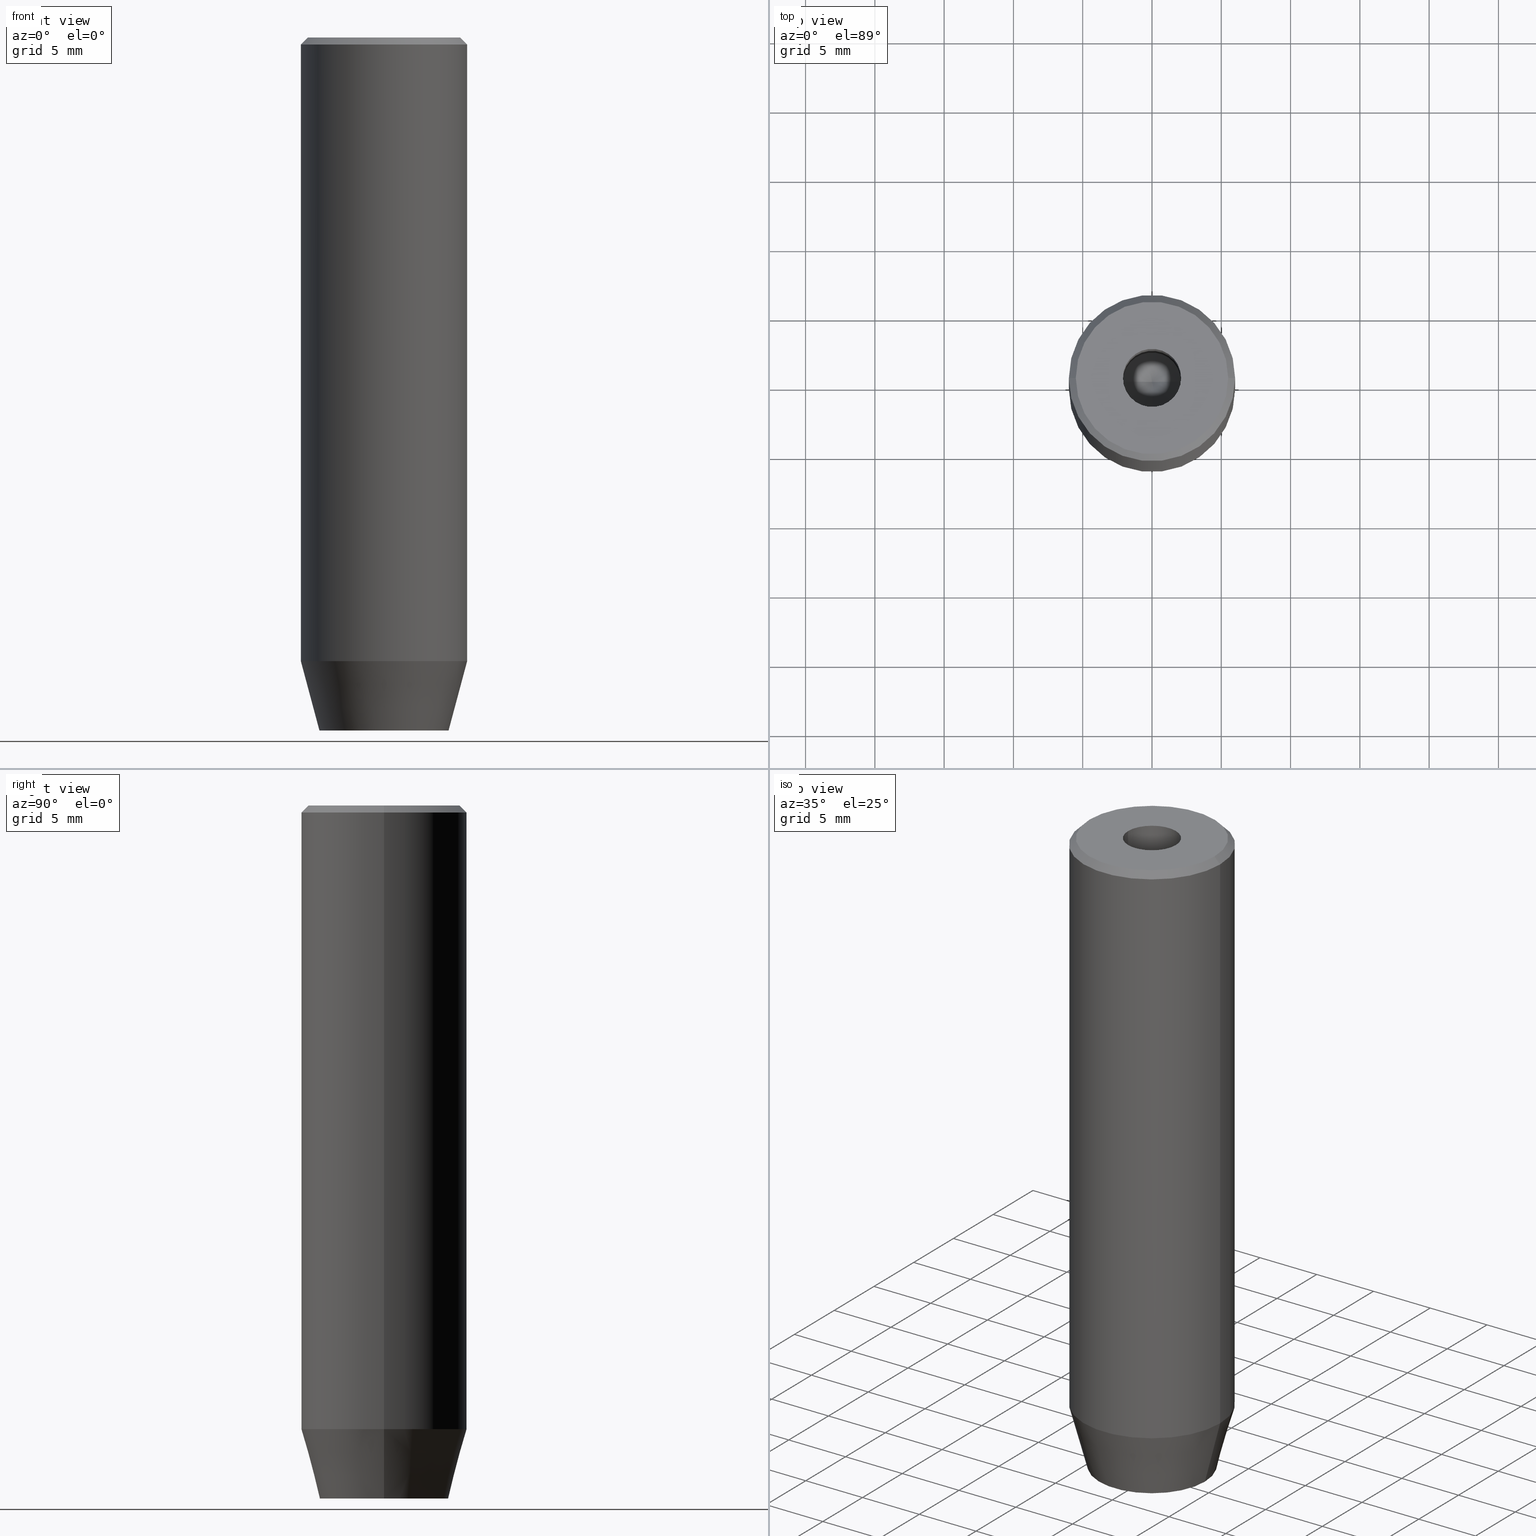
[diagram: canonical four-view strip — front | top / right | iso, engineering-drawing reading convention]
A machine part, canonical four-view strip (front | top / right | iso — engineering-drawing reading convention). The complete STEP part file that produces these views, byte-faithful:
ISO-10303-21;
HEADER;
FILE_DESCRIPTION (( 'STEP AP203' ),
    '1' );
FILE_NAME ('119d.STEP',
    '2024-01-02T21:57:10',
    ( '' ),
    ( '' ),
    'SwSTEP 2.0',
    'SolidWorks 2019',
    '' );
FILE_SCHEMA (( 'CONFIG_CONTROL_DESIGN' ));
ENDSEC;

DATA;
#1 = CARTESIAN_POINT ( 'NONE',  ( 0.000000000000000000, 0.000000000000000000, -45.00000000000000711 ) ) ;
#2 = ORIENTED_EDGE ( 'NONE', *, *, #275, .T. ) ;
#3 = EDGE_CURVE ( 'NONE', #278, #454, #384, .T. ) ;
#4 = DIRECTION ( 'NONE',  ( -0.000000000000000000, -0.000000000000000000, 1.000000000000000000 ) ) ;
#5 = EDGE_LOOP ( 'NONE', ( #512, #327, #334, #270, #83, #542 ) ) ;
#6 = CARTESIAN_POINT ( 'NONE',  ( 2.500000000000000000, -1.443375672974064106, -47.20000000000000284 ) ) ;
#7 = VERTEX_POINT ( 'NONE', #560 ) ;
#8 = ORIENTED_EDGE ( 'NONE', *, *, #180, .F. ) ;
#9 = CARTESIAN_POINT ( 'NONE',  ( 0.000000000000000000, 0.000000000000000000, 0.000000000000000000 ) ) ;
#10 = AXIS2_PLACEMENT_3D ( 'NONE', #69, #248, #34 ) ;
#11 = DIRECTION ( 'NONE',  ( 1.000000000000000000, 0.000000000000000000, 0.000000000000000000 ) ) ;
#12 = CIRCLE ( 'NONE', #217, 2.099999999999996980 ) ;
#13 = ORIENTED_EDGE ( 'NONE', *, *, #379, .F. ) ;
#14 = EDGE_CURVE ( 'NONE', #570, #324, #123, .T. ) ;
#15 = PLANE ( 'NONE',  #422 ) ;
#16 = APPROVAL_STATUS ( 'not_yet_approved' ) ;
#17 = DIRECTION ( 'NONE',  ( -0.000000000000000000, -0.000000000000000000, 1.000000000000000000 ) ) ;
#18 = ORIENTED_EDGE ( 'NONE', *, *, #121, .T. ) ;
#19 = AXIS2_PLACEMENT_3D ( 'NONE', #543, #144, #321 ) ;
#20 = ORIENTED_EDGE ( 'NONE', *, *, #275, .F. ) ;
#21 = AXIS2_PLACEMENT_3D ( 'NONE', #178, #390, #483 ) ;
#22 = CALENDAR_DATE ( 2024, 2, 1 ) ;
#23 = CC_DESIGN_PERSON_AND_ORGANIZATION_ASSIGNMENT ( #550, #507, ( #437 ) ) ;
#24 = FACE_OUTER_BOUND ( 'NONE', #366, .T. ) ;
#25 = VERTEX_POINT ( 'NONE', #429 ) ;
#26 = PERSON_AND_ORGANIZATION ( #463, #547 ) ;
#27 = ORIENTED_EDGE ( 'NONE', *, *, #527, .T. ) ;
#28 = APPLICATION_CONTEXT ( 'configuration controlled 3d designs of mechanical parts and assemblies' ) ;
#29 = ORIENTED_EDGE ( 'NONE', *, *, #425, .T. ) ;
#30 = DIRECTION ( 'NONE',  ( -0.000000000000000000, -0.000000000000000000, -1.000000000000000000 ) ) ;
#31 = ADVANCED_FACE ( 'NONE', ( #163 ), #480, .T. ) ;
#32 = CIRCLE ( 'NONE', #224, 2.099999999999998757 ) ;
#33 = PLANE ( 'NONE',  #295 ) ;
#34 = DIRECTION ( 'NONE',  ( -1.000000000000000000, 0.000000000000000000, -0.000000000000000000 ) ) ;
#35 = ORIENTED_EDGE ( 'NONE', *, *, #352, .F. ) ;
#36 = DIRECTION ( 'NONE',  ( -0.7071067811865474617, 0.000000000000000000, -0.7071067811865474617 ) ) ;
#37 = LINE ( 'NONE', #261, #403 ) ;
#38 = CARTESIAN_POINT ( 'NONE',  ( 1.250000000000000222, 2.165063509461096825, -50.00000000000000000 ) ) ;
#39 = CIRCLE ( 'NONE', #19, 6.000000000000000000 ) ;
#40 = LOCAL_TIME ( 22, 57, 10.00000000000000000, #505 ) ;
#41 = EDGE_CURVE ( 'NONE', #25, #370, #211, .T. ) ;
#42 = CARTESIAN_POINT ( 'NONE',  ( -1.250000000000000444, 2.165063509461097269, -47.20000000000000284 ) ) ;
#43 = FACE_OUTER_BOUND ( 'NONE', #119, .T. ) ;
#44 = PLANE ( 'NONE',  #86 ) ;
#45 = DIRECTION ( 'NONE',  ( 0.7071067811865474617, 8.659560562354932858E-17, -0.7071067811865474617 ) ) ;
#46 = CARTESIAN_POINT ( 'NONE',  ( 5.499999999999990230, 7.041719095097274963E-16, 0.000000000000000000 ) ) ;
#47 = ORIENTED_EDGE ( 'NONE', *, *, #358, .F. ) ;
#48 = EDGE_CURVE ( 'NONE', #161, #126, #298, .T. ) ;
#49 = CIRCLE ( 'NONE', #129, 6.000000000000000000 ) ;
#50 = VERTEX_POINT ( 'NONE', #566 ) ;
#51 = CARTESIAN_POINT ( 'NONE',  ( 0.000000000000000000, 0.000000000000000000, 0.000000000000000000 ) ) ;
#52 = ORIENTED_EDGE ( 'NONE', *, *, #367, .F. ) ;
#53 = FACE_OUTER_BOUND ( 'NONE', #255, .T. ) ;
#54 = VERTEX_POINT ( 'NONE', #516 ) ;
#55 = DATE_AND_TIME ( #458, #40 ) ;
#56 = ADVANCED_FACE ( 'NONE', ( #167 ), #339, .F. ) ;
#57 = CARTESIAN_POINT ( 'NONE',  ( -2.099999999999996980, 2.571758278209438013E-16, -15.00000000000000000 ) ) ;
#58 = DIRECTION ( 'NONE',  ( -0.8660254037844385966, 0.5000000000000001110, 0.000000000000000000 ) ) ;
#59 = AXIS2_PLACEMENT_3D ( 'NONE', #393, #268, #302 ) ;
#60 = VECTOR ( 'NONE', #36, 1000.000000000000114 ) ;
#61 = APPROVAL_ROLE ( '' ) ;
#62 = DIRECTION ( 'NONE',  ( -0.000000000000000000, -0.000000000000000000, 1.000000000000000000 ) ) ;
#63 = ORIENTED_EDGE ( 'NONE', *, *, #121, .F. ) ;
#64 = ADVANCED_FACE ( 'NONE', ( #157 ), #286, .T. ) ;
#65 = DIRECTION ( 'NONE',  ( 1.000000000000000000, 0.000000000000000000, -0.000000000000000000 ) ) ;
#66 = VECTOR ( 'NONE', #223, 1000.000000000000000 ) ;
#67 = ORIENTED_EDGE ( 'NONE', *, *, #180, .T. ) ;
#68 = CALENDAR_DATE ( 2024, 2, 1 ) ;
#69 = CARTESIAN_POINT ( 'NONE',  ( 0.000000000000000000, 0.000000000000000000, -47.20000000000000284 ) ) ;
#70 = COORDINATED_UNIVERSAL_TIME_OFFSET ( 1, 0, .AHEAD. ) ;
#71 = CARTESIAN_POINT ( 'NONE',  ( 0.000000000000000000, 0.000000000000000000, -15.00000000000000000 ) ) ;
#72 = EDGE_CURVE ( 'NONE', #407, #276, #470, .T. ) ;
#73 = DIRECTION ( 'NONE',  ( 1.000000000000000000, 0.000000000000000000, 0.000000000000000000 ) ) ;
#74 = ORIENTED_EDGE ( 'NONE', *, *, #14, .T. ) ;
#75 = AXIS2_PLACEMENT_3D ( 'NONE', #1, #186, #408 ) ;
#76 = AXIS2_PLACEMENT_3D ( 'NONE', #469, #65, #201 ) ;
#77 = PRODUCT_DEFINITION_FORMATION_WITH_SPECIFIED_SOURCE ( 'LIBOVOLN�', '', #233, .NOT_KNOWN. ) ;
#78 = DIRECTION ( 'NONE',  ( 0.000000000000000000, 0.000000000000000000, -1.000000000000000000 ) ) ;
#79 = DIRECTION ( 'NONE',  ( 0.8660254037844385966, 0.5000000000000001110, 0.000000000000000000 ) ) ;
#80 = DESIGN_CONTEXT ( 'detailed design', #28, 'design' ) ;
#81 = ORIENTED_EDGE ( 'NONE', *, *, #571, .T. ) ;
#82 = FACE_OUTER_BOUND ( 'NONE', #341, .T. ) ;
#83 = ORIENTED_EDGE ( 'NONE', *, *, #100, .T. ) ;
#84 = ADVANCED_FACE ( 'NONE', ( #128, #488 ), #44, .T. ) ;
#85 = CARTESIAN_POINT ( 'NONE',  ( -2.500000000000000444, -1.443375672974064328, -47.20000000000000284 ) ) ;
#86 = AXIS2_PLACEMENT_3D ( 'NONE', #581, #583, #486 ) ;
#87 = CARTESIAN_POINT ( 'NONE',  ( -1.084202172485504434E-16, 2.886751345948129543, -47.20000000000000284 ) ) ;
#88 = PLANE ( 'NONE',  #59 ) ;
#89 = ORIENTED_EDGE ( 'NONE', *, *, #315, .T. ) ;
#90 = MECHANICAL_CONTEXT ( 'NONE', #122, 'mechanical' ) ;
#91 = CARTESIAN_POINT ( 'NONE',  ( 2.099999999999996980, 0.000000000000000000, -15.00000000000000000 ) ) ;
#92 = ADVANCED_FACE ( 'NONE', ( #82 ), #88, .F. ) ;
#93 = ORIENTED_EDGE ( 'NONE', *, *, #352, .T. ) ;
#94 = PERSON_AND_ORGANIZATION_ROLE ( 'design_owner' ) ;
#95 = FACE_OUTER_BOUND ( 'NONE', #360, .T. ) ;
#96 = ORIENTED_EDGE ( 'NONE', *, *, #237, .T. ) ;
#97 = AXIS2_PLACEMENT_3D ( 'NONE', #133, #135, #356 ) ;
#98 = ORIENTED_EDGE ( 'NONE', *, *, #571, .F. ) ;
#99 = CARTESIAN_POINT ( 'NONE',  ( -2.099999999999996980, 2.571758278209438013E-16, -15.00000000000000000 ) ) ;
#100 = EDGE_CURVE ( 'NONE', #554, #161, #37, .T. ) ;
#101 = ORIENTED_EDGE ( 'NONE', *, *, #3, .F. ) ;
#102 =( NAMED_UNIT ( * ) SI_UNIT ( $, .STERADIAN. ) SOLID_ANGLE_UNIT ( ) );
#103 = CYLINDRICAL_SURFACE ( 'NONE', #538, 6.000000000000000000 ) ;
#104 = EDGE_LOOP ( 'NONE', ( #288, #529, #181 ) ) ;
#105 = ORIENTED_EDGE ( 'NONE', *, *, #48, .T. ) ;
#106 = CC_DESIGN_DATE_AND_TIME_ASSIGNMENT ( #207, #472, ( #440 ) ) ;
#107 = COORDINATED_UNIVERSAL_TIME_OFFSET ( 1, 0, .AHEAD. ) ;
#108 = CARTESIAN_POINT ( 'NONE',  ( 0.000000000000000000, 0.000000000000000000, 0.000000000000000000 ) ) ;
#109 = PLANE ( 'NONE',  #253 ) ;
#110 = AXIS2_PLACEMENT_3D ( 'NONE', #131, #216, #397 ) ;
#111 = VERTEX_POINT ( 'NONE', #174 ) ;
#112 = DIRECTION ( 'NONE',  ( 1.000000000000000000, 0.000000000000000000, 0.000000000000000000 ) ) ;
#113 = DIRECTION ( 'NONE',  ( 1.000000000000000000, 0.000000000000000000, 0.000000000000000000 ) ) ;
#114 = EDGE_CURVE ( 'NONE', #54, #7, #532, .T. ) ;
#115 = EDGE_LOOP ( 'NONE', ( #495, #89, #227, #13 ) ) ;
#116 = PERSON_AND_ORGANIZATION ( #463, #547 ) ;
#117 = VECTOR ( 'NONE', #432, 1000.000000000000000 ) ;
#118 = VECTOR ( 'NONE', #572, 1000.000000000000114 ) ;
#119 = EDGE_LOOP ( 'NONE', ( #101, #260, #289, #322 ) ) ;
#120 = LOCAL_TIME ( 22, 57, 10.00000000000000000, #238 ) ;
#121 = EDGE_CURVE ( 'NONE', #276, #54, #346, .T. ) ;
#122 = APPLICATION_CONTEXT ( 'configuration controlled 3d designs of mechanical parts and assemblies' ) ;
#123 = LINE ( 'NONE', #169, #521 ) ;
#124 = CARTESIAN_POINT ( 'NONE',  ( 0.000000000000000000, 0.000000000000000000, -0.5000000000000099920 ) ) ;
#125 = ORIENTED_EDGE ( 'NONE', *, *, #315, .F. ) ;
#126 = VERTEX_POINT ( 'NONE', #222 ) ;
#127 = CARTESIAN_POINT ( 'NONE',  ( -2.500000000000000444, 1.443375672974064772, -47.20000000000000284 ) ) ;
#128 = FACE_BOUND ( 'NONE', #328, .T. ) ;
#129 = AXIS2_PLACEMENT_3D ( 'NONE', #124, #467, #112 ) ;
#130 = AXIS2_PLACEMENT_3D ( 'NONE', #9, #313, #194 ) ;
#131 = CARTESIAN_POINT ( 'NONE',  ( 0.000000000000000000, 0.000000000000000000, 0.000000000000000000 ) ) ;
#132 = EDGE_CURVE ( 'NONE', #161, #570, #182, .T. ) ;
#133 = CARTESIAN_POINT ( 'NONE',  ( 0.000000000000000000, 0.000000000000000000, 0.000000000000000000 ) ) ;
#134 = DIRECTION ( 'NONE',  ( -1.000000000000000000, 0.000000000000000000, 0.000000000000000000 ) ) ;
#135 = DIRECTION ( 'NONE',  ( 0.000000000000000000, 0.000000000000000000, -1.000000000000000000 ) ) ;
#136 = PRODUCT_DEFINITION_SHAPE ( 'NONE', 'NONE',  #437 ) ;
#137 = VECTOR ( 'NONE', #415, 1000.000000000000000 ) ;
#138 = AXIS2_PLACEMENT_3D ( 'NONE', #519, #310, #573 ) ;
#139 = ORIENTED_EDGE ( 'NONE', *, *, #465, .F. ) ;
#140 = ADVANCED_FACE ( 'NONE', ( #304 ), #210, .T. ) ;
#141 = LINE ( 'NONE', #42, #274 ) ;
#142 = LINE ( 'NONE', #464, #451 ) ;
#143 = ORIENTED_EDGE ( 'NONE', *, *, #503, .T. ) ;
#144 = DIRECTION ( 'NONE',  ( 0.000000000000000000, 0.000000000000000000, -1.000000000000000000 ) ) ;
#145 = CIRCLE ( 'NONE', #471, 4.660254037844382857 ) ;
#146 = CONICAL_SURFACE ( 'NONE', #331, 5.499999999999990230, 0.7853981633974482790 ) ;
#147 = LINE ( 'NONE', #511, #430 ) ;
#148 = ORIENTED_EDGE ( 'NONE', *, *, #132, .F. ) ;
#149 = ADVANCED_FACE ( 'NONE', ( #215 ), #243, .F. ) ;
#150 = DIRECTION ( 'NONE',  ( 0.000000000000000000, -1.000000000000000000, 0.000000000000000000 ) ) ;
#151 = ORIENTED_EDGE ( 'NONE', *, *, #220, .T. ) ;
#152 = DIRECTION ( 'NONE',  ( -0.2588190451025214611, 3.169619151431774186E-17, 0.9659258262890679791 ) ) ;
#153 = AXIS2_PLACEMENT_3D ( 'NONE', #525, #290, #113 ) ;
#154 = EDGE_CURVE ( 'NONE', #549, #50, #574, .T. ) ;
#155 = CARTESIAN_POINT ( 'NONE',  ( -4.660254037844382857, 6.527522992771886302E-16, -50.00000000000000000 ) ) ;
#156 = CIRCLE ( 'NONE', #256, 5.499999999999990230 ) ;
#157 = FACE_OUTER_BOUND ( 'NONE', #115, .T. ) ;
#158 = APPROVAL_ROLE ( '' ) ;
#159 = CARTESIAN_POINT ( 'NONE',  ( -3.982994051648894933E-15, 0.000000000000000000, -16.26180729995787644 ) ) ;
#160 = APPROVAL ( #569, 'NEUR�EN�' ) ;
#161 = VERTEX_POINT ( 'NONE', #85 ) ;
#162 = PLANE ( 'NONE',  #138 ) ;
#163 = FACE_OUTER_BOUND ( 'NONE', #5, .T. ) ;
#164 = EDGE_CURVE ( 'NONE', #570, #549, #141, .T. ) ;
#165 = DIRECTION ( 'NONE',  ( 1.000000000000000000, 0.000000000000000000, 0.000000000000000000 ) ) ;
#166 = CIRCLE ( 'NONE', #266, 4.660254037844382857 ) ;
#167 = FACE_OUTER_BOUND ( 'NONE', #498, .T. ) ;
#168 = CARTESIAN_POINT ( 'NONE',  ( 2.099999999999997868, 0.000000000000000000, 0.000000000000000000 ) ) ;
#169 = CARTESIAN_POINT ( 'NONE',  ( -2.500000000000000444, 1.443375672974064772, -47.20000000000000284 ) ) ;
#170 = EDGE_LOOP ( 'NONE', ( #493, #375, #20, #47 ) ) ;
#171 = CARTESIAN_POINT ( 'NONE',  ( 1.249999999999999778, -2.165063509461096380, -50.00000000000000000 ) ) ;
#172 = CARTESIAN_POINT ( 'NONE',  ( -5.499999999999990230, 0.000000000000000000, 0.000000000000000000 ) ) ;
#173 = EDGE_CURVE ( 'NONE', #200, #454, #32, .T. ) ;
#174 = CARTESIAN_POINT ( 'NONE',  ( 2.099999999999996980, 0.000000000000000000, -15.00000000000000000 ) ) ;
#175 = AXIS2_PLACEMENT_3D ( 'NONE', #108, #284, #461 ) ;
#176 = LINE ( 'NONE', #350, #514 ) ;
#177 = CARTESIAN_POINT ( 'NONE',  ( 2.099999999999998757, 0.000000000000000000, -1.990051048614449116E-16 ) ) ;
#178 = CARTESIAN_POINT ( 'NONE',  ( 0.000000000000000000, 0.000000000000000000, 0.000000000000000000 ) ) ;
#179 = CARTESIAN_POINT ( 'NONE',  ( 1.249999999999999778, -2.165063509461096380, -47.20000000000000284 ) ) ;
#180 = EDGE_CURVE ( 'NONE', #50, #276, #528, .T. ) ;
#181 = ORIENTED_EDGE ( 'NONE', *, *, #367, .T. ) ;
#182 = LINE ( 'NONE', #400, #66 ) ;
#183 = VERTEX_POINT ( 'NONE', #351 ) ;
#184 = AXIS2_PLACEMENT_3D ( 'NONE', #305, #484, #219 ) ;
#185 = LOCAL_TIME ( 22, 57, 10.00000000000000000, #70 ) ;
#186 = DIRECTION ( 'NONE',  ( -0.000000000000000000, -0.000000000000000000, 1.000000000000000000 ) ) ;
#187 = ORIENTED_EDGE ( 'NONE', *, *, #220, .F. ) ;
#188 = CARTESIAN_POINT ( 'NONE',  ( -6.000000000000000000, 7.347880794884119736E-16, -0.5000000000000099920 ) ) ;
#189 = ORIENTED_EDGE ( 'NONE', *, *, #552, .F. ) ;
#190 = DIRECTION ( 'NONE',  ( -0.000000000000000000, -0.000000000000000000, 1.000000000000000000 ) ) ;
#191 = CC_DESIGN_DATE_AND_TIME_ASSIGNMENT ( #555, #558, ( #437 ) ) ;
#192 = CIRCLE ( 'NONE', #378, 6.000000000000000000 ) ;
#193 = VERTEX_POINT ( 'NONE', #46 ) ;
#194 = DIRECTION ( 'NONE',  ( 1.000000000000000000, 0.000000000000000000, 0.000000000000000000 ) ) ;
#195 = DIRECTION ( 'NONE',  ( -0.000000000000000000, -0.000000000000000000, 1.000000000000000000 ) ) ;
#196 = DIRECTION ( 'NONE',  ( 0.2588190451025214611, 0.000000000000000000, 0.9659258262890679791 ) ) ;
#197 = ADVANCED_FACE ( 'NONE', ( #259 ), #306, .F. ) ;
#198 = VERTEX_POINT ( 'NONE', #578 ) ;
#199 = CARTESIAN_POINT ( 'NONE',  ( 1.250000000000000222, 2.165063509461096825, -47.20000000000000284 ) ) ;
#200 = VERTEX_POINT ( 'NONE', #177 ) ;
#201 = DIRECTION ( 'NONE',  ( -0.000000000000000000, 0.000000000000000000, -1.000000000000000000 ) ) ;
#202 = LOCAL_TIME ( 22, 57, 10.00000000000000000, #475 ) ;
#203 = ORIENTED_EDGE ( 'NONE', *, *, #283, .F. ) ;
#204 = FACE_OUTER_BOUND ( 'NONE', #170, .T. ) ;
#205 = EDGE_CURVE ( 'NONE', #385, #554, #398, .T. ) ;
#206 = ORIENTED_EDGE ( 'NONE', *, *, #418, .F. ) ;
#207 = DATE_AND_TIME ( #22, #202 ) ;
#208 = DIRECTION ( 'NONE',  ( -0.000000000000000000, -0.000000000000000000, 1.000000000000000000 ) ) ;
#209 = DIRECTION ( 'NONE',  ( -0.4999999999999998890, -0.8660254037844387076, 0.000000000000000000 ) ) ;
#210 = CONICAL_SURFACE ( 'NONE', #97, 5.499999999999990230, 0.7853981633974482790 ) ;
#211 = LINE ( 'NONE', #518, #234 ) ;
#212 = DIRECTION ( 'NONE',  ( -0.000000000000000000, -0.000000000000000000, 1.000000000000000000 ) ) ;
#213 = ORIENTED_EDGE ( 'NONE', *, *, #503, .F. ) ;
#214 = EDGE_CURVE ( 'NONE', #410, #111, #494, .T. ) ;
#215 = FACE_OUTER_BOUND ( 'NONE', #104, .T. ) ;
#216 = DIRECTION ( 'NONE',  ( -0.000000000000000000, -0.000000000000000000, 1.000000000000000000 ) ) ;
#217 = AXIS2_PLACEMENT_3D ( 'NONE', #71, #17, #165 ) ;
#218 = ORIENTED_EDGE ( 'NONE', *, *, #299, .F. ) ;
#219 = DIRECTION ( 'NONE',  ( 1.000000000000000000, 0.000000000000000000, 0.000000000000000000 ) ) ;
#220 = EDGE_CURVE ( 'NONE', #7, #126, #491, .T. ) ;
#221 = ORIENTED_EDGE ( 'NONE', *, *, #154, .F. ) ;
#222 = CARTESIAN_POINT ( 'NONE',  ( -2.500000000000000444, -1.443375672974064328, -50.00000000000000000 ) ) ;
#223 = DIRECTION ( 'NONE',  ( 0.000000000000000000, 1.000000000000000000, 0.000000000000000000 ) ) ;
#224 = AXIS2_PLACEMENT_3D ( 'NONE', #265, #441, #311 ) ;
#225 = ORIENTED_EDGE ( 'NONE', *, *, #48, .F. ) ;
#226 = DIRECTION ( 'NONE',  ( -0.8571673007021113344, 1.049727191138617463E-16, 0.5150380749100558209 ) ) ;
#227 = ORIENTED_EDGE ( 'NONE', *, *, #358, .T. ) ;
#228 = ADVANCED_FACE ( 'NONE', ( #279 ), #15, .F. ) ;
#229 = CARTESIAN_POINT ( 'NONE',  ( 0.000000000000000000, 0.000000000000000000, -50.00000000000000000 ) ) ;
#230 = ORIENTED_EDGE ( 'NONE', *, *, #323, .F. ) ;
#231 = DIRECTION ( 'NONE',  ( 1.000000000000000000, 0.000000000000000000, 0.000000000000000000 ) ) ;
#232 = ORIENTED_EDGE ( 'NONE', *, *, #457, .F. ) ;
#233 = PRODUCT ( '119d', '119d', '', ( #90 ) ) ;
#234 = VECTOR ( 'NONE', #208, 1000.000000000000000 ) ;
#235 = VECTOR ( 'NONE', #343, 1000.000000000000000 ) ;
#236 = CARTESIAN_POINT ( 'NONE',  ( 0.000000000000000000, -2.886751345948128211, -47.20000000000000284 ) ) ;
#237 = EDGE_CURVE ( 'NONE', #385, #54, #363, .T. ) ;
#238 = COORDINATED_UNIVERSAL_TIME_OFFSET ( 1, 0, .AHEAD. ) ;
#239 = LINE ( 'NONE', #199, #567 ) ;
#240 = CARTESIAN_POINT ( 'NONE',  ( -2.099999999999998757, 2.571758278209439985E-16, -1.990051048614449116E-16 ) ) ;
#241 = ORIENTED_EDGE ( 'NONE', *, *, #283, .T. ) ;
#242 = DATE_AND_TIME ( #427, #120 ) ;
#243 = CONICAL_SURFACE ( 'NONE', #184, 2.099999999999996980, 1.029744258676652535 ) ;
#244 = CARTESIAN_POINT ( 'NONE',  ( 2.500000000000000000, 1.443375672974064328, -47.20000000000000284 ) ) ;
#245 = DATE_AND_TIME ( #68, #185 ) ;
#246 = EDGE_CURVE ( 'NONE', #468, #25, #147, .T. ) ;
#247 = DIRECTION ( 'NONE',  ( 1.000000000000000000, 0.000000000000000000, 0.000000000000000000 ) ) ;
#248 = DIRECTION ( 'NONE',  ( 0.000000000000000000, 0.000000000000000000, -1.000000000000000000 ) ) ;
#249 = ORIENTED_EDGE ( 'NONE', *, *, #14, .F. ) ;
#250 = PERSON_AND_ORGANIZATION_ROLE ( 'creator' ) ;
#251 = ORIENTED_EDGE ( 'NONE', *, *, #510, .T. ) ;
#252 = CARTESIAN_POINT ( 'NONE',  ( 0.000000000000000000, 0.000000000000000000, 0.000000000000000000 ) ) ;
#253 = AXIS2_PLACEMENT_3D ( 'NONE', #406, #374, #459 ) ;
#254 = VECTOR ( 'NONE', #531, 1000.000000000000000 ) ;
#255 = EDGE_LOOP ( 'NONE', ( #319, #249, #148, #105 ) ) ;
#256 = AXIS2_PLACEMENT_3D ( 'NONE', #252, #264, #439 ) ;
#257 = EDGE_CURVE ( 'NONE', #370, #198, #39, .T. ) ;
#258 = DIRECTION ( 'NONE',  ( -0.8660254037844385966, -0.5000000000000001110, 0.000000000000000000 ) ) ;
#259 = FACE_OUTER_BOUND ( 'NONE', #502, .T. ) ;
#260 = ORIENTED_EDGE ( 'NONE', *, *, #425, .F. ) ;
#261 = CARTESIAN_POINT ( 'NONE',  ( -1.249999999999999556, -2.165063509461096825, -47.20000000000000284 ) ) ;
#262 = ORIENTED_EDGE ( 'NONE', *, *, #379, .T. ) ;
#263 = ADVANCED_FACE ( 'NONE', ( #316 ), #103, .T. ) ;
#264 = DIRECTION ( 'NONE',  ( -0.000000000000000000, -0.000000000000000000, 1.000000000000000000 ) ) ;
#265 = CARTESIAN_POINT ( 'NONE',  ( 0.000000000000000000, 0.000000000000000000, -1.990051048614449116E-16 ) ) ;
#266 = AXIS2_PLACEMENT_3D ( 'NONE', #229, #4, #231 ) ;
#267 = DIRECTION ( 'NONE',  ( 1.000000000000000000, 0.000000000000000000, 0.000000000000000000 ) ) ;
#268 = DIRECTION ( 'NONE',  ( 0.5000000000000000000, -0.8660254037844387076, 0.000000000000000000 ) ) ;
#269 = DIRECTION ( 'NONE',  ( 0.8571673007021113344, 0.000000000000000000, 0.5150380749100558209 ) ) ;
#270 = ORIENTED_EDGE ( 'NONE', *, *, #205, .T. ) ;
#271 = LINE ( 'NONE', #411, #482 ) ;
#272 = CARTESIAN_POINT ( 'NONE',  ( 0.000000000000000000, 0.000000000000000000, 0.000000000000000000 ) ) ;
#273 = ORIENTED_EDGE ( 'NONE', *, *, #395, .T. ) ;
#274 = VECTOR ( 'NONE', #79, 1000.000000000000000 ) ;
#275 = EDGE_CURVE ( 'NONE', #478, #25, #192, .T. ) ;
#276 = VERTEX_POINT ( 'NONE', #500 ) ;
#277 = CARTESIAN_POINT ( 'NONE',  ( 0.000000000000000000, 0.000000000000000000, -45.00000000000000711 ) ) ;
#278 = VERTEX_POINT ( 'NONE', #99 ) ;
#279 = FACE_OUTER_BOUND ( 'NONE', #409, .T. ) ;
#280 = ORIENTED_EDGE ( 'NONE', *, *, #41, .T. ) ;
#281 = ORIENTED_EDGE ( 'NONE', *, *, #114, .T. ) ;
#282 = PERSON_AND_ORGANIZATION ( #463, #547 ) ;
#283 = EDGE_CURVE ( 'NONE', #324, #50, #553, .T. ) ;
#284 = DIRECTION ( 'NONE',  ( -0.000000000000000000, -0.000000000000000000, 1.000000000000000000 ) ) ;
#285 = ORIENTED_EDGE ( 'NONE', *, *, #214, .T. ) ;
#286 = CONICAL_SURFACE ( 'NONE', #153, 6.000000000000000000, 0.2617993877991502405 ) ;
#287 = LINE ( 'NONE', #236, #137 ) ;
#288 = ORIENTED_EDGE ( 'NONE', *, *, #214, .F. ) ;
#289 = ORIENTED_EDGE ( 'NONE', *, *, #457, .T. ) ;
#290 = DIRECTION ( 'NONE',  ( -0.000000000000000000, -0.000000000000000000, 1.000000000000000000 ) ) ;
#291 = ADVANCED_FACE ( 'NONE', ( #53 ), #109, .F. ) ;
#292 = PERSON_AND_ORGANIZATION ( #463, #547 ) ;
#293 = AXIS2_PLACEMENT_3D ( 'NONE', #524, #388, #417 ) ;
#294 = DIRECTION ( 'NONE',  ( -0.000000000000000000, -0.000000000000000000, 1.000000000000000000 ) ) ;
#295 = AXIS2_PLACEMENT_3D ( 'NONE', #345, #526, #258 ) ;
#296 = ORIENTED_EDGE ( 'NONE', *, *, #237, .F. ) ;
#297 = EDGE_LOOP ( 'NONE', ( #536, #81, #337, #213 ) ) ;
#298 = LINE ( 'NONE', #520, #338 ) ;
#299 = EDGE_CURVE ( 'NONE', #410, #278, #326, .T. ) ;
#300 = EDGE_LOOP ( 'NONE', ( #489, #27 ) ) ;
#301 = CIRCLE ( 'NONE', #175, 5.499999999999990230 ) ;
#302 = DIRECTION ( 'NONE',  ( 0.8660254037844385966, 0.4999999999999999445, 0.000000000000000000 ) ) ;
#303 = PRODUCT_RELATED_PRODUCT_CATEGORY ( 'detail', '', ( #233 ) ) ;
#304 = FACE_OUTER_BOUND ( 'NONE', #297, .T. ) ;
#305 = CARTESIAN_POINT ( 'NONE',  ( 0.000000000000000000, 0.000000000000000000, -15.00000000000000000 ) ) ;
#306 = CYLINDRICAL_SURFACE ( 'NONE', #110, 2.099999999999997868 ) ;
#307 = VECTOR ( 'NONE', #424, 1000.000000000000000 ) ;
#308 = CC_DESIGN_APPROVAL ( #335, ( #437 ) ) ;
#309 = ORIENTED_EDGE ( 'NONE', *, *, #114, .F. ) ;
#310 = DIRECTION ( 'NONE',  ( 0.000000000000000000, 0.000000000000000000, -1.000000000000000000 ) ) ;
#311 = DIRECTION ( 'NONE',  ( 1.000000000000000000, 0.000000000000000000, 0.000000000000000000 ) ) ;
#312 = ORIENTED_EDGE ( 'NONE', *, *, #342, .F. ) ;
#313 = DIRECTION ( 'NONE',  ( 0.000000000000000000, 0.000000000000000000, 1.000000000000000000 ) ) ;
#314 = CYLINDRICAL_SURFACE ( 'NONE', #347, 6.000000000000000000 ) ;
#315 = EDGE_CURVE ( 'NONE', #468, #183, #166, .T. ) ;
#316 = FACE_OUTER_BOUND ( 'NONE', #453, .T. ) ;
#317 = APPROVAL ( #16, 'NEUR�EN�' ) ;
#318 = AXIS2_PLACEMENT_3D ( 'NONE', #329, #62, #402 ) ;
#319 = ORIENTED_EDGE ( 'NONE', *, *, #579, .T. ) ;
#320 = PERSON_AND_ORGANIZATION ( #463, #547 ) ;
#321 = DIRECTION ( 'NONE',  ( 1.000000000000000000, 0.000000000000000000, 0.000000000000000000 ) ) ;
#322 = ORIENTED_EDGE ( 'NONE', *, *, #173, .T. ) ;
#323 = EDGE_CURVE ( 'NONE', #407, #385, #412, .T. ) ;
#324 = VERTEX_POINT ( 'NONE', #508 ) ;
#325 = APPLICATION_PROTOCOL_DEFINITION ( 'international standard', 'config_control_design', 1994, #122 ) ;
#326 = LINE ( 'NONE', #57, #586 ) ;
#327 = ORIENTED_EDGE ( 'NONE', *, *, #465, .T. ) ;
#328 = EDGE_LOOP ( 'NONE', ( #456, #189 ) ) ;
#329 = CARTESIAN_POINT ( 'NONE',  ( 0.000000000000000000, 0.000000000000000000, -15.00000000000000000 ) ) ;
#330 = CIRCLE ( 'NONE', #75, 6.000000000000000000 ) ;
#331 = AXIS2_PLACEMENT_3D ( 'NONE', #534, #78, #134 ) ;
#332 = CARTESIAN_POINT ( 'NONE',  ( -2.099999999999997868, 2.571758278209438999E-16, 0.000000000000000000 ) ) ;
#333 = DIRECTION ( 'NONE',  ( 0.8660254037844387076, -0.4999999999999998890, 0.000000000000000000 ) ) ;
#334 = ORIENTED_EDGE ( 'NONE', *, *, #323, .T. ) ;
#335 = APPROVAL ( #361, 'NEUR�EN�' ) ;
#336 = SECURITY_CLASSIFICATION_LEVEL ( 'unclassified' ) ;
#337 = ORIENTED_EDGE ( 'NONE', *, *, #257, .F. ) ;
#338 = VECTOR ( 'NONE', #30, 1000.000000000000000 ) ;
#339 = CONICAL_SURFACE ( 'NONE', #501, 2.099999999999996980, 1.029744258676652535 ) ;
#340 = FACE_OUTER_BOUND ( 'NONE', #448, .T. ) ;
#341 = EDGE_LOOP ( 'NONE', ( #281, #35, #548, #96 ) ) ;
#342 = EDGE_CURVE ( 'NONE', #460, #193, #301, .T. ) ;
#343 = DIRECTION ( 'NONE',  ( -0.000000000000000000, -0.000000000000000000, 1.000000000000000000 ) ) ;
#344 = EDGE_LOOP ( 'NONE', ( #241, #221, #391, #74 ) ) ;
#345 = CARTESIAN_POINT ( 'NONE',  ( -1.250000000000000444, 2.165063509461097269, -47.20000000000000284 ) ) ;
#346 = LINE ( 'NONE', #435, #368 ) ;
#347 = AXIS2_PLACEMENT_3D ( 'NONE', #272, #190, #479 ) ;
#348 = LOCAL_TIME ( 22, 57, 10.00000000000000000, #107 ) ;
#349 = DIRECTION ( 'NONE',  ( -0.8660254037844387076, -0.5000000000000001110, 0.000000000000000000 ) ) ;
#350 = CARTESIAN_POINT ( 'NONE',  ( 6.000000000000000000, 0.000000000000000000, 0.000000000000000000 ) ) ;
#351 = CARTESIAN_POINT ( 'NONE',  ( 4.660254037844382857, 0.000000000000000000, -50.00000000000000000 ) ) ;
#352 = EDGE_CURVE ( 'NONE', #554, #7, #287, .T. ) ;
#353 = FACE_OUTER_BOUND ( 'NONE', #506, .T. ) ;
#354 = DIRECTION ( 'NONE',  ( -0.8660254037844387076, -0.5000000000000001110, 0.000000000000000000 ) ) ;
#355 = DIRECTION ( 'NONE',  ( -0.000000000000000000, -0.000000000000000000, 1.000000000000000000 ) ) ;
#356 = DIRECTION ( 'NONE',  ( -1.000000000000000000, 0.000000000000000000, 0.000000000000000000 ) ) ;
#357 = APPROVAL_PERSON_ORGANIZATION ( #116, #160, #61 ) ;
#358 = EDGE_CURVE ( 'NONE', #183, #478, #142, .T. ) ;
#359 = DIRECTION ( 'NONE',  ( 0.8660254037844385966, 0.5000000000000001110, 0.000000000000000000 ) ) ;
#360 = EDGE_LOOP ( 'NONE', ( #2, #280, #421, #504 ) ) ;
#361 = APPROVAL_STATUS ( 'not_yet_approved' ) ;
#362 = CC_DESIGN_PERSON_AND_ORGANIZATION_ASSIGNMENT ( #382, #423, ( #77 ) ) ;
#363 = LINE ( 'NONE', #497, #513 ) ;
#364 = EDGE_LOOP ( 'NONE', ( #18, #296, #230, #436 ) ) ;
#365 = DIRECTION ( 'NONE',  ( -0.000000000000000000, -0.000000000000000000, -1.000000000000000000 ) ) ;
#366 = EDGE_LOOP ( 'NONE', ( #206, #125 ) ) ;
#367 = EDGE_CURVE ( 'NONE', #278, #111, #585, .T. ) ;
#368 = VECTOR ( 'NONE', #535, 1000.000000000000000 ) ;
#369 = APPROVAL_PERSON_ORGANIZATION ( #320, #335, #499 ) ;
#370 = VERTEX_POINT ( 'NONE', #188 ) ;
#371 = APPROVAL_DATE_TIME ( #55, #335 ) ;
#372 = MANIFOLD_SOLID_BREP ( 'Vrt�k z�vitn�ku pro M5 z�vit1', #584 ) ;
#373 = DIRECTION ( 'NONE',  ( 0.5000000000000001110, 0.8660254037844385966, -0.000000000000000000 ) ) ;
#374 = DIRECTION ( 'NONE',  ( -1.000000000000000000, 0.000000000000000000, 0.000000000000000000 ) ) ;
#375 = ORIENTED_EDGE ( 'NONE', *, *, #246, .T. ) ;
#376 = FACE_OUTER_BOUND ( 'NONE', #364, .T. ) ;
#377 = ORIENTED_EDGE ( 'NONE', *, *, #72, .F. ) ;
#378 = AXIS2_PLACEMENT_3D ( 'NONE', #277, #195, #11 ) ;
#379 = EDGE_CURVE ( 'NONE', #25, #478, #330, .T. ) ;
#380 = CARTESIAN_POINT ( 'NONE',  ( 6.000000000000000000, 0.000000000000000000, -45.00000000000000711 ) ) ;
#381 = EDGE_LOOP ( 'NONE', ( #203, #426, #187, #309, #63, #8 ) ) ;
#382 = PERSON_AND_ORGANIZATION ( #463, #547 ) ;
#383 = LINE ( 'NONE', #168, #235 ) ;
#384 = LINE ( 'NONE', #332, #117 ) ;
#385 = VERTEX_POINT ( 'NONE', #6 ) ;
#386 = ADVANCED_FACE ( 'NONE', ( #95 ), #314, .T. ) ;
#387 = VECTOR ( 'NONE', #269, 1000.000000000000000 ) ;
#388 = DIRECTION ( 'NONE',  ( -0.000000000000000000, -0.000000000000000000, 1.000000000000000000 ) ) ;
#389 = ORIENTED_EDGE ( 'NONE', *, *, #154, .T. ) ;
#390 = DIRECTION ( 'NONE',  ( -0.000000000000000000, -0.000000000000000000, 1.000000000000000000 ) ) ;
#391 = ORIENTED_EDGE ( 'NONE', *, *, #164, .F. ) ;
#392 = UNCERTAINTY_MEASURE_WITH_UNIT (LENGTH_MEASURE( 1.000000000000000082E-05 ), #496, 'distance_accuracy_value', 'NONE');
#393 = CARTESIAN_POINT ( 'NONE',  ( 1.249999999999999778, -2.165063509461096380, -47.20000000000000284 ) ) ;
#394 = VECTOR ( 'NONE', #359, 1000.000000000000000 ) ;
#395 = EDGE_CURVE ( 'NONE', #198, #370, #49, .T. ) ;
#396 = APPROVAL_PERSON_ORGANIZATION ( #515, #317, #158 ) ;
#397 = DIRECTION ( 'NONE',  ( 1.000000000000000000, 0.000000000000000000, 0.000000000000000000 ) ) ;
#398 = LINE ( 'NONE', #179, #575 ) ;
#399 = CARTESIAN_POINT ( 'NONE',  ( 0.000000000000000000, 0.000000000000000000, -1.990051048614449116E-16 ) ) ;
#400 = CARTESIAN_POINT ( 'NONE',  ( -2.500000000000000444, 0.000000000000000000, -47.20000000000000284 ) ) ;
#401 = ADVANCED_FACE ( 'NONE', ( #204 ), #530, .T. ) ;
#402 = DIRECTION ( 'NONE',  ( 1.000000000000000000, 0.000000000000000000, 0.000000000000000000 ) ) ;
#403 = VECTOR ( 'NONE', #443, 1000.000000000000114 ) ;
#404 = AXIS2_PLACEMENT_3D ( 'NONE', #399, #355, #267 ) ;
#405 = ORIENTED_EDGE ( 'NONE', *, *, #41, .F. ) ;
#406 = CARTESIAN_POINT ( 'NONE',  ( -2.500000000000000444, 0.000000000000000000, -47.20000000000000284 ) ) ;
#407 = VERTEX_POINT ( 'NONE', #565 ) ;
#408 = DIRECTION ( 'NONE',  ( 1.000000000000000000, 0.000000000000000000, 0.000000000000000000 ) ) ;
#409 = EDGE_LOOP ( 'NONE', ( #67, #377, #139, #389 ) ) ;
#410 = VERTEX_POINT ( 'NONE', #159 ) ;
#411 = CARTESIAN_POINT ( 'NONE',  ( -2.500000000000000444, 0.000000000000000000, -50.00000000000000000 ) ) ;
#412 = LINE ( 'NONE', #541, #557 ) ;
#413 = ORIENTED_EDGE ( 'NONE', *, *, #552, .T. ) ;
#414 = DIRECTION ( 'NONE',  ( 0.000000000000000000, 1.000000000000000000, 0.000000000000000000 ) ) ;
#415 = DIRECTION ( 'NONE',  ( -0.000000000000000000, -0.000000000000000000, -1.000000000000000000 ) ) ;
#416 = PERSON_AND_ORGANIZATION_ROLE ( 'classification_officer' ) ;
#417 = DIRECTION ( 'NONE',  ( 1.000000000000000000, 0.000000000000000000, 0.000000000000000000 ) ) ;
#418 = EDGE_CURVE ( 'NONE', #183, #468, #145, .T. ) ;
#419 = SHAPE_DEFINITION_REPRESENTATION ( #136, #492 ) ;
#420 = PLANE ( 'NONE',  #76 ) ;
#421 = ORIENTED_EDGE ( 'NONE', *, *, #257, .T. ) ;
#422 = AXIS2_PLACEMENT_3D ( 'NONE', #545, #373, #58 ) ;
#423 = PERSON_AND_ORGANIZATION_ROLE ( 'design_supplier' ) ;
#424 = DIRECTION ( 'NONE',  ( -0.000000000000000000, -0.000000000000000000, -1.000000000000000000 ) ) ;
#425 = EDGE_CURVE ( 'NONE', #111, #278, #12, .T. ) ;
#426 = ORIENTED_EDGE ( 'NONE', *, *, #579, .F. ) ;
#427 = CALENDAR_DATE ( 2024, 2, 1 ) ;
#428 = CARTESIAN_POINT ( 'NONE',  ( -1.249999999999999556, -2.165063509461096825, -47.20000000000000284 ) ) ;
#429 = CARTESIAN_POINT ( 'NONE',  ( -6.000000000000000000, 7.347880794884119736E-16, -45.00000000000000711 ) ) ;
#430 = VECTOR ( 'NONE', #152, 1000.000000000000114 ) ;
#431 = CC_DESIGN_APPROVAL ( #160, ( #77 ) ) ;
#432 = DIRECTION ( 'NONE',  ( -0.000000000000000000, -0.000000000000000000, 1.000000000000000000 ) ) ;
#433 = ORIENTED_EDGE ( 'NONE', *, *, #100, .F. ) ;
#434 = LINE ( 'NONE', #445, #587 ) ;
#435 = CARTESIAN_POINT ( 'NONE',  ( 2.500000000000000000, 0.000000000000000000, -50.00000000000000000 ) ) ;
#436 = ORIENTED_EDGE ( 'NONE', *, *, #72, .T. ) ;
#437 = PRODUCT_DEFINITION ( 'NEZN�M�', '', #77, #80 ) ;
#438 = DIRECTION ( 'NONE',  ( -0.000000000000000000, -0.000000000000000000, -1.000000000000000000 ) ) ;
#439 = DIRECTION ( 'NONE',  ( 1.000000000000000000, 0.000000000000000000, 0.000000000000000000 ) ) ;
#440 = SECURITY_CLASSIFICATION ( '', '', #336 ) ;
#441 = DIRECTION ( 'NONE',  ( -0.000000000000000000, -0.000000000000000000, 1.000000000000000000 ) ) ;
#442 = CARTESIAN_POINT ( 'NONE',  ( 0.000000000000000000, -2.886751345948128211, -47.20000000000000284 ) ) ;
#443 = DIRECTION ( 'NONE',  ( -0.8660254037844387076, 0.4999999999999998890, 0.000000000000000000 ) ) ;
#444 = ADVANCED_FACE ( 'NONE', ( #340 ), #556, .F. ) ;
#445 = CARTESIAN_POINT ( 'NONE',  ( 5.499999999999990230, 6.735557395310430190E-16, 0.000000000000000000 ) ) ;
#446 = CARTESIAN_POINT ( 'NONE',  ( -1.249999999999999556, -2.165063509461096825, -50.00000000000000000 ) ) ;
#447 = CC_DESIGN_PERSON_AND_ORGANIZATION_ASSIGNMENT ( #292, #416, ( #440 ) ) ;
#448 = EDGE_LOOP ( 'NONE', ( #151, #225, #433, #93 ) ) ;
#449 = APPLICATION_PROTOCOL_DEFINITION ( 'international standard', 'config_control_design', 1994, #28 ) ;
#450 = DIRECTION ( 'NONE',  ( 1.000000000000000000, 0.000000000000000000, 0.000000000000000000 ) ) ;
#451 = VECTOR ( 'NONE', #196, 1000.000000000000114 ) ;
#452 = CC_DESIGN_SECURITY_CLASSIFICATION ( #440, ( #77 ) ) ;
#453 = EDGE_LOOP ( 'NONE', ( #405, #262, #251, #273 ) ) ;
#454 = VERTEX_POINT ( 'NONE', #240 ) ;
#455 = DIRECTION ( 'NONE',  ( -0.000000000000000000, -0.000000000000000000, 1.000000000000000000 ) ) ;
#456 = ORIENTED_EDGE ( 'NONE', *, *, #173, .F. ) ;
#457 = EDGE_CURVE ( 'NONE', #111, #200, #383, .T. ) ;
#458 = CALENDAR_DATE ( 2024, 2, 1 ) ;
#459 = DIRECTION ( 'NONE',  ( 0.000000000000000000, 0.000000000000000000, 1.000000000000000000 ) ) ;
#460 = VERTEX_POINT ( 'NONE', #517 ) ;
#461 = DIRECTION ( 'NONE',  ( 1.000000000000000000, 0.000000000000000000, 0.000000000000000000 ) ) ;
#462 = CIRCLE ( 'NONE', #404, 2.099999999999998757 ) ;
#463 = PERSON ( 'NEUR�EN�', 'NEUR�EN�', 'NEUR�EN�', ('NEUR�EN�'), ('NEUR�EN�'), ('NEUR�EN�') ) ;
#464 = CARTESIAN_POINT ( 'NONE',  ( 6.000000000000000000, 0.000000000000000000, -45.00000000000000711 ) ) ;
#465 = EDGE_CURVE ( 'NONE', #549, #407, #239, .T. ) ;
#466 = APPROVAL_DATE_TIME ( #245, #317 ) ;
#467 = DIRECTION ( 'NONE',  ( 0.000000000000000000, 0.000000000000000000, -1.000000000000000000 ) ) ;
#468 = VERTEX_POINT ( 'NONE', #155 ) ;
#469 = CARTESIAN_POINT ( 'NONE',  ( 2.500000000000000000, 0.000000000000000000, -47.20000000000000284 ) ) ;
#470 = LINE ( 'NONE', #244, #307 ) ;
#471 = AXIS2_PLACEMENT_3D ( 'NONE', #477, #294, #247 ) ;
#472 = DATE_TIME_ROLE ( 'classification_date' ) ;
#473 = ADVANCED_FACE ( 'NONE', ( #376 ), #420, .F. ) ;
#474 = ORIENTED_EDGE ( 'NONE', *, *, #3, .T. ) ;
#475 = COORDINATED_UNIVERSAL_TIME_OFFSET ( 1, 0, .AHEAD. ) ;
#476 = CC_DESIGN_PERSON_AND_ORGANIZATION_ASSIGNMENT ( #26, #250, ( #77 ) ) ;
#477 = CARTESIAN_POINT ( 'NONE',  ( 0.000000000000000000, 0.000000000000000000, -50.00000000000000000 ) ) ;
#478 = VERTEX_POINT ( 'NONE', #380 ) ;
#479 = DIRECTION ( 'NONE',  ( 1.000000000000000000, 0.000000000000000000, 0.000000000000000000 ) ) ;
#480 = PLANE ( 'NONE',  #10 ) ;
#481 = VECTOR ( 'NONE', #438, 1000.000000000000000 ) ;
#482 = VECTOR ( 'NONE', #414, 1000.000000000000000 ) ;
#483 = DIRECTION ( 'NONE',  ( 1.000000000000000000, 0.000000000000000000, 0.000000000000000000 ) ) ;
#484 = DIRECTION ( 'NONE',  ( -0.000000000000000000, -0.000000000000000000, 1.000000000000000000 ) ) ;
#485 = ADVANCED_FACE ( 'NONE', ( #559, #24 ), #162, .T. ) ;
#486 = DIRECTION ( 'NONE',  ( 1.000000000000000000, 0.000000000000000000, 0.000000000000000000 ) ) ;
#487 = DIRECTION ( 'NONE',  ( -0.000000000000000000, -0.000000000000000000, 1.000000000000000000 ) ) ;
#488 = FACE_OUTER_BOUND ( 'NONE', #300, .T. ) ;
#489 = ORIENTED_EDGE ( 'NONE', *, *, #342, .T. ) ;
#490 = ADVANCED_FACE ( 'NONE', ( #43 ), #580, .F. ) ;
#491 = LINE ( 'NONE', #446, #118 ) ;
#492 = ADVANCED_BREP_SHAPE_REPRESENTATION ( '119d', ( #372, #130 ), #576 ) ;
#493 = ORIENTED_EDGE ( 'NONE', *, *, #418, .T. ) ;
#494 = LINE ( 'NONE', #91, #387 ) ;
#495 = ORIENTED_EDGE ( 'NONE', *, *, #246, .F. ) ;
#496 =( LENGTH_UNIT ( ) NAMED_UNIT ( * ) SI_UNIT ( .MILLI., .METRE. ) );
#497 = CARTESIAN_POINT ( 'NONE',  ( 2.500000000000000000, -1.443375672974064106, -47.20000000000000284 ) ) ;
#498 = EDGE_LOOP ( 'NONE', ( #218, #285, #29 ) ) ;
#499 = APPROVAL_ROLE ( '' ) ;
#500 = CARTESIAN_POINT ( 'NONE',  ( 2.500000000000000000, 1.443375672974064328, -50.00000000000000000 ) ) ;
#501 = AXIS2_PLACEMENT_3D ( 'NONE', #523, #212, #73 ) ;
#502 = EDGE_LOOP ( 'NONE', ( #52, #474, #413, #232 ) ) ;
#503 = EDGE_CURVE ( 'NONE', #460, #370, #577, .T. ) ;
#504 = ORIENTED_EDGE ( 'NONE', *, *, #510, .F. ) ;
#505 = COORDINATED_UNIVERSAL_TIME_OFFSET ( 1, 0, .AHEAD. ) ;
#506 = EDGE_LOOP ( 'NONE', ( #98, #312, #143, #582 ) ) ;
#507 = PERSON_AND_ORGANIZATION_ROLE ( 'creator' ) ;
#508 = CARTESIAN_POINT ( 'NONE',  ( -2.500000000000000444, 1.443375672974064772, -50.00000000000000000 ) ) ;
#509 = APPROVAL_DATE_TIME ( #242, #160 ) ;
#510 = EDGE_CURVE ( 'NONE', #478, #198, #176, .T. ) ;
#511 = CARTESIAN_POINT ( 'NONE',  ( -6.000000000000000000, 7.347880794884119736E-16, -45.00000000000000711 ) ) ;
#512 = ORIENTED_EDGE ( 'NONE', *, *, #164, .T. ) ;
#513 = VECTOR ( 'NONE', #365, 1000.000000000000000 ) ;
#514 = VECTOR ( 'NONE', #487, 1000.000000000000000 ) ;
#515 = PERSON_AND_ORGANIZATION ( #463, #547 ) ;
#516 = CARTESIAN_POINT ( 'NONE',  ( 2.500000000000000000, -1.443375672974064106, -50.00000000000000000 ) ) ;
#517 = CARTESIAN_POINT ( 'NONE',  ( -5.499999999999990230, 0.000000000000000000, 0.000000000000000000 ) ) ;
#518 = CARTESIAN_POINT ( 'NONE',  ( -6.000000000000000000, 7.347880794884119736E-16, 0.000000000000000000 ) ) ;
#519 = CARTESIAN_POINT ( 'NONE',  ( 0.000000000000000000, 4.660254037844382857, -50.00000000000000000 ) ) ;
#520 = CARTESIAN_POINT ( 'NONE',  ( -2.500000000000000444, -1.443375672974064328, -47.20000000000000284 ) ) ;
#521 = VECTOR ( 'NONE', #563, 1000.000000000000000 ) ;
#522 = VECTOR ( 'NONE', #349, 999.9999999999998863 ) ;
#523 = CARTESIAN_POINT ( 'NONE',  ( 0.000000000000000000, 0.000000000000000000, -15.00000000000000000 ) ) ;
#524 = CARTESIAN_POINT ( 'NONE',  ( 0.000000000000000000, 0.000000000000000000, -45.00000000000000711 ) ) ;
#525 = CARTESIAN_POINT ( 'NONE',  ( 0.000000000000000000, 0.000000000000000000, -45.00000000000000711 ) ) ;
#526 = DIRECTION ( 'NONE',  ( -0.5000000000000001110, 0.8660254037844385966, 0.000000000000000000 ) ) ;
#527 = EDGE_CURVE ( 'NONE', #193, #460, #156, .T. ) ;
#528 = LINE ( 'NONE', #38, #254 ) ;
#529 = ORIENTED_EDGE ( 'NONE', *, *, #299, .T. ) ;
#530 = CONICAL_SURFACE ( 'NONE', #293, 6.000000000000000000, 0.2617993877991502405 ) ;
#531 = DIRECTION ( 'NONE',  ( 0.8660254037844385966, -0.5000000000000001110, 0.000000000000000000 ) ) ;
#532 = LINE ( 'NONE', #171, #522 ) ;
#533 = ADVANCED_FACE ( 'NONE', ( #353 ), #146, .T. ) ;
#534 = CARTESIAN_POINT ( 'NONE',  ( 0.000000000000000000, 0.000000000000000000, 0.000000000000000000 ) ) ;
#535 = DIRECTION ( 'NONE',  ( 0.000000000000000000, -1.000000000000000000, 0.000000000000000000 ) ) ;
#536 = ORIENTED_EDGE ( 'NONE', *, *, #527, .F. ) ;
#537 = FACE_OUTER_BOUND ( 'NONE', #344, .T. ) ;
#538 = AXIS2_PLACEMENT_3D ( 'NONE', #51, #455, #450 ) ;
#539 = CARTESIAN_POINT ( 'NONE',  ( -1.084202172485504434E-16, 2.886751345948129543, -47.20000000000000284 ) ) ;
#540 =( NAMED_UNIT ( * ) PLANE_ANGLE_UNIT ( ) SI_UNIT ( $, .RADIAN. ) );
#541 = CARTESIAN_POINT ( 'NONE',  ( 2.500000000000000000, 0.000000000000000000, -47.20000000000000284 ) ) ;
#542 = ORIENTED_EDGE ( 'NONE', *, *, #132, .T. ) ;
#543 = CARTESIAN_POINT ( 'NONE',  ( 0.000000000000000000, 0.000000000000000000, -0.5000000000000099920 ) ) ;
#544 = CC_DESIGN_PERSON_AND_ORGANIZATION_ASSIGNMENT ( #282, #94, ( #233 ) ) ;
#545 = CARTESIAN_POINT ( 'NONE',  ( 1.250000000000000222, 2.165063509461096825, -47.20000000000000284 ) ) ;
#546 = AXIS2_PLACEMENT_3D ( 'NONE', #428, #209, #333 ) ;
#547 = ORGANIZATION ( 'NEUR�EN�', 'NEUR�EN�', '' ) ;
#548 = ORIENTED_EDGE ( 'NONE', *, *, #205, .F. ) ;
#549 = VERTEX_POINT ( 'NONE', #87 ) ;
#550 = PERSON_AND_ORGANIZATION ( #463, #547 ) ;
#551 = CARTESIAN_POINT ( 'NONE',  ( -1.250000000000000444, 2.165063509461097269, -50.00000000000000000 ) ) ;
#552 = EDGE_CURVE ( 'NONE', #454, #200, #462, .T. ) ;
#553 = LINE ( 'NONE', #551, #394 ) ;
#554 = VERTEX_POINT ( 'NONE', #442 ) ;
#555 = DATE_AND_TIME ( #561, #348 ) ;
#556 = PLANE ( 'NONE',  #546 ) ;
#557 = VECTOR ( 'NONE', #150, 1000.000000000000000 ) ;
#558 = DATE_TIME_ROLE ( 'creation_date' ) ;
#559 = FACE_BOUND ( 'NONE', #381, .T. ) ;
#560 = CARTESIAN_POINT ( 'NONE',  ( 0.000000000000000000, -2.886751345948128211, -50.00000000000000000 ) ) ;
#561 = CALENDAR_DATE ( 2024, 2, 1 ) ;
#562 = DIRECTION ( 'NONE',  ( 0.8660254037844385966, -0.5000000000000001110, 0.000000000000000000 ) ) ;
#563 = DIRECTION ( 'NONE',  ( -0.000000000000000000, -0.000000000000000000, -1.000000000000000000 ) ) ;
#564 = ADVANCED_FACE ( 'NONE', ( #537 ), #33, .F. ) ;
#565 = CARTESIAN_POINT ( 'NONE',  ( 2.500000000000000000, 1.443375672974064328, -47.20000000000000284 ) ) ;
#566 = CARTESIAN_POINT ( 'NONE',  ( -1.084202172485504434E-16, 2.886751345948129543, -50.00000000000000000 ) ) ;
#567 = VECTOR ( 'NONE', #562, 1000.000000000000000 ) ;
#568 = CC_DESIGN_APPROVAL ( #317, ( #440 ) ) ;
#569 = APPROVAL_STATUS ( 'not_yet_approved' ) ;
#570 = VERTEX_POINT ( 'NONE', #127 ) ;
#571 = EDGE_CURVE ( 'NONE', #193, #198, #434, .T. ) ;
#572 = DIRECTION ( 'NONE',  ( -0.8660254037844387076, 0.4999999999999998890, 0.000000000000000000 ) ) ;
#573 = DIRECTION ( 'NONE',  ( -1.000000000000000000, 0.000000000000000000, -0.000000000000000000 ) ) ;
#574 = LINE ( 'NONE', #539, #481 ) ;
#575 = VECTOR ( 'NONE', #354, 999.9999999999998863 ) ;
#576 =( GEOMETRIC_REPRESENTATION_CONTEXT ( 3 ) GLOBAL_UNCERTAINTY_ASSIGNED_CONTEXT ( ( #392 ) ) GLOBAL_UNIT_ASSIGNED_CONTEXT ( ( #496, #540, #102 ) ) REPRESENTATION_CONTEXT ( 'NONE', 'WORKASPACE' ) );
#577 = LINE ( 'NONE', #172, #60 ) ;
#578 = CARTESIAN_POINT ( 'NONE',  ( 6.000000000000000000, 0.000000000000000000, -0.5000000000000099920 ) ) ;
#579 = EDGE_CURVE ( 'NONE', #126, #324, #271, .T. ) ;
#580 = CYLINDRICAL_SURFACE ( 'NONE', #21, 2.099999999999997868 ) ;
#581 = CARTESIAN_POINT ( 'NONE',  ( 0.000000000000000000, 0.000000000000000000, 0.000000000000000000 ) ) ;
#582 = ORIENTED_EDGE ( 'NONE', *, *, #395, .F. ) ;
#583 = DIRECTION ( 'NONE',  ( 0.000000000000000000, -0.000000000000000000, 1.000000000000000000 ) ) ;
#584 = CLOSED_SHELL ( 'NONE', ( #197, #149, #140, #401, #386, #485, #84, #263, #64, #533, #564, #291, #444, #92, #473, #228, #31, #56, #490 ) ) ;
#585 = CIRCLE ( 'NONE', #318, 2.099999999999996980 ) ;
#586 = VECTOR ( 'NONE', #226, 1000.000000000000000 ) ;
#587 = VECTOR ( 'NONE', #45, 1000.000000000000114 ) ;
ENDSEC;
END-ISO-10303-21;
